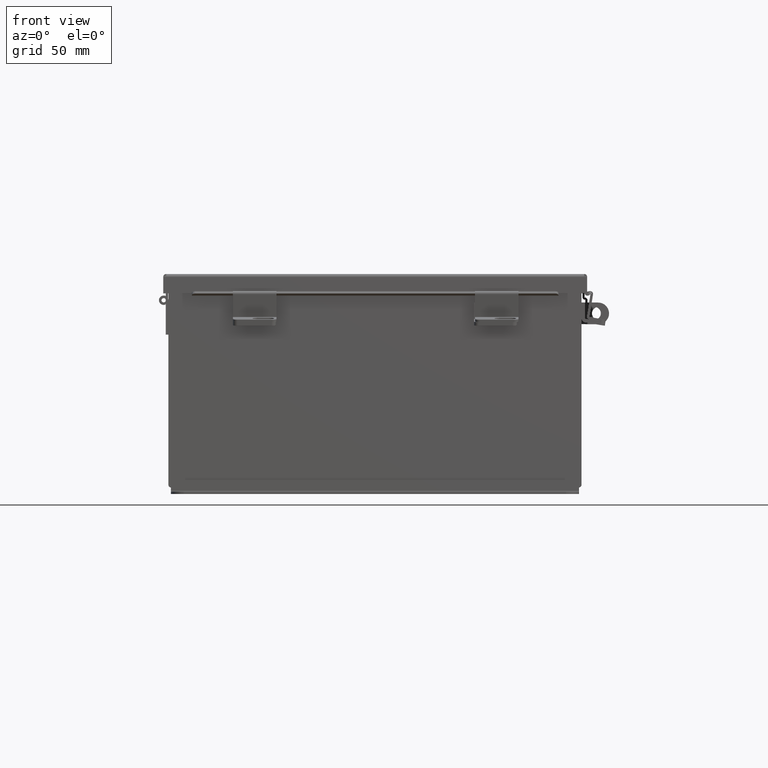
[diagram: clean part render]
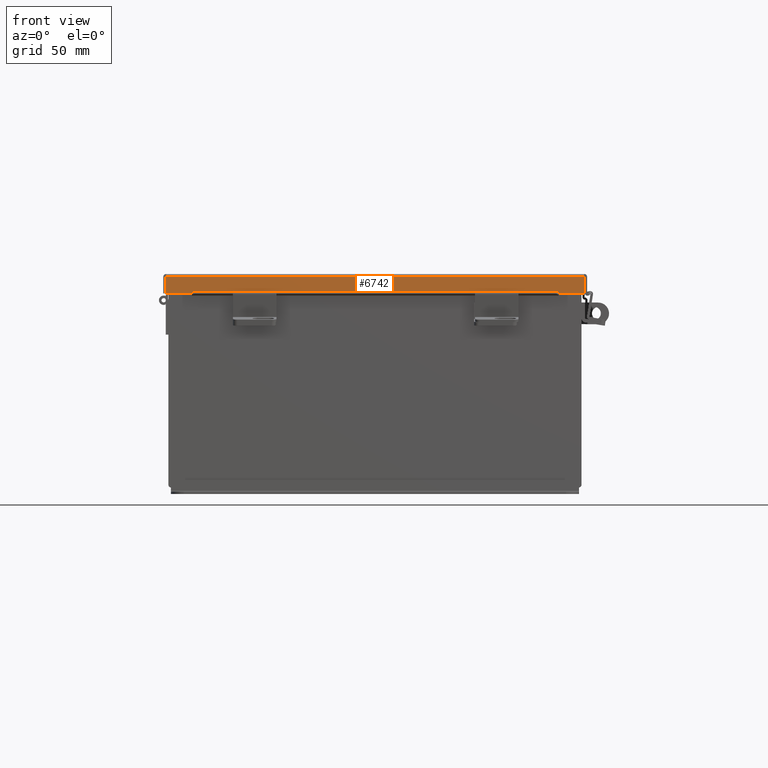
[diagram: same view with one face highlighted and labeled with its STEP entity id]
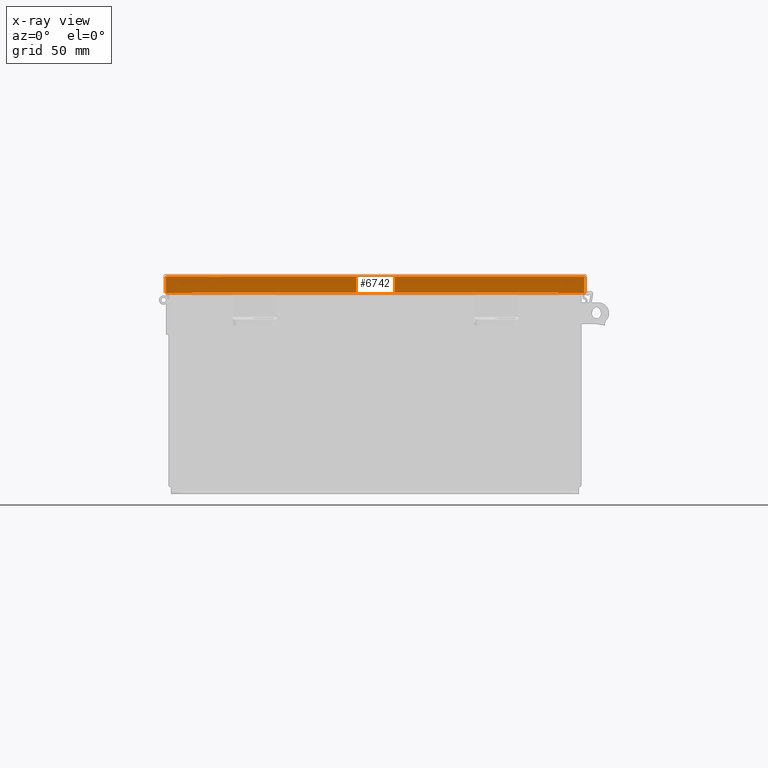
[diagram: x-ray of the same camera — body ghosted, the highlighted face saturated]
A machine part, front view. The second image highlights one B-rep face of the part: STEP entity #6742.
The next image is the same camera in x-ray: the body ghosted, the highlighted face saturated — about 0% of this face is hidden behind the body in this view.
In plain terms, the highlighted planar face has unit normal (0, 1, -0).
Its self-contained STEP definition (entity closure, byte-faithful):
#328 = VECTOR ( 'NONE', #6348, 39.37007874015748100 ) ;
#347 = CARTESIAN_POINT ( 'NONE',  ( -5.324478932188134700, -7.156250000000004400, 0.4717115427318793700 ) ) ;
#688 = CARTESIAN_POINT ( 'NONE',  ( -6.074478932188134700, -7.156250000000003600, 0.4872999999999997900 ) ) ;
#787 = LINE ( 'NONE', #16589, #328 ) ;
#1519 = EDGE_CURVE ( 'NONE', #11068, #14471, #14347, .T. ) ;
#1772 = VECTOR ( 'NONE', #5935, 39.37007874015748100 ) ;
#2211 = DIRECTION ( 'NONE',  ( 7.009925220120962200E-014, 0.0000000000000000000, -1.000000000000000000 ) ) ;
#2243 = CARTESIAN_POINT ( 'NONE',  ( -6.074478932188134700, -7.156250000000001800, -3.350199796867980800E-016 ) ) ;
#2507 = AXIS2_PLACEMENT_3D ( 'NONE', #3594, #5637, #14167 ) ;
#2924 = CARTESIAN_POINT ( 'NONE',  ( 5.324478932188136500, -7.156250000000003600, 0.4717115427318793700 ) ) ;
#3015 = CARTESIAN_POINT ( 'NONE',  ( -5.324478932188134700, -7.156250000000003600, 0.4872999999999997900 ) ) ;
#3126 = VECTOR ( 'NONE', #9579, 39.37007874015748100 ) ;
#3290 = VERTEX_POINT ( 'NONE', #4465 ) ;
#3581 = LINE ( 'NONE', #16943, #3126 ) ;
#3594 = CARTESIAN_POINT ( 'NONE',  ( -1.780270132900160700E-031, -7.156250000000001800, -3.235568286128124700E-014 ) ) ;
#3862 = ORIENTED_EDGE ( 'NONE', *, *, #6421, .F. ) ;
#3910 = VERTEX_POINT ( 'NONE', #688 ) ;
#4453 = CARTESIAN_POINT ( 'NONE',  ( 5.324478932188136500, -7.156250000000004400, 0.4717115427318793700 ) ) ;
#4465 = CARTESIAN_POINT ( 'NONE',  ( 6.074478932188137400, -7.156250000000003600, 0.4872999999999997300 ) ) ;
#5228 = DIRECTION ( 'NONE',  ( -1.000000000000000000, 2.487713722829918300E-032, 1.089533968265403200E-046 ) ) ;
#5267 = VECTOR ( 'NONE', #16462, 39.37007874015748100 ) ;
#5310 = PLANE ( 'NONE',  #2507 ) ;
#5388 = EDGE_LOOP ( 'NONE', ( #6076, #14343, #5838, #14085, #9249, #14106, #8147, #3862 ) ) ;
#5637 = DIRECTION ( 'NONE',  ( 2.487713722829918300E-032, 1.000000000000000000, 4.484872552701437000E-015 ) ) ;
#5838 = ORIENTED_EDGE ( 'NONE', *, *, #7985, .F. ) ;
#5935 = DIRECTION ( 'NONE',  ( 0.0000000000000000000, 7.009925220120839700E-014, 1.000000000000000000 ) ) ;
#6062 = VECTOR ( 'NONE', #8704, 39.37007874015748100 ) ;
#6076 = ORIENTED_EDGE ( 'NONE', *, *, #1519, .F. ) ;
#6348 = DIRECTION ( 'NONE',  ( -1.000000000000000000, 0.0000000000000000000, 5.546899479521349200E-018 ) ) ;
#6421 = EDGE_CURVE ( 'NONE', #14471, #10368, #17443, .T. ) ;
#6670 = DIRECTION ( 'NONE',  ( -0.0000000000000000000, -4.484872552701437000E-015, 1.000000000000000000 ) ) ;
#6742 = ADVANCED_FACE ( 'NONE', ( #11903 ), #5310, .F. ) ;
#6788 = CARTESIAN_POINT ( 'NONE',  ( 5.324478932188136500, -7.156250000000003600, 0.4872999999999997900 ) ) ;
#7569 = VECTOR ( 'NONE', #6670, 39.37007874015748100 ) ;
#7985 = EDGE_CURVE ( 'NONE', #15690, #3910, #15369, .T. ) ;
#8062 = CARTESIAN_POINT ( 'NONE',  ( 6.074478932188137400, -7.156250000000001800, 0.01299999999999978100 ) ) ;
#8147 = ORIENTED_EDGE ( 'NONE', *, *, #10417, .F. ) ;
#8704 = DIRECTION ( 'NONE',  ( 0.0000000000000000000, -4.484872552701437000E-015, 1.000000000000000000 ) ) ;
#8730 = CARTESIAN_POINT ( 'NONE',  ( -5.324478932188133000, -7.156250000000004400, 0.4717115427318793700 ) ) ;
#8797 = VERTEX_POINT ( 'NONE', #6788 ) ;
#9249 = ORIENTED_EDGE ( 'NONE', *, *, #13182, .T. ) ;
#9495 = VERTEX_POINT ( 'NONE', #8062 ) ;
#9579 = DIRECTION ( 'NONE',  ( -1.000000000000000000, 0.0000000000000000000, 5.546899479521349200E-018 ) ) ;
#10223 = EDGE_CURVE ( 'NONE', #9495, #15690, #16252, .T. ) ;
#10368 = VERTEX_POINT ( 'NONE', #2924 ) ;
#10417 = EDGE_CURVE ( 'NONE', #10368, #8797, #16457, .T. ) ;
#10434 = VECTOR ( 'NONE', #2211, 39.37007874015748100 ) ;
#11044 = CARTESIAN_POINT ( 'NONE',  ( -5.324478932188134700, -7.156250000000004400, 0.4872999999999991200 ) ) ;
#11068 = VERTEX_POINT ( 'NONE', #3015 ) ;
#11336 = EDGE_CURVE ( 'NONE', #11068, #3910, #3581, .T. ) ;
#11903 = FACE_OUTER_BOUND ( 'NONE', #5388, .T. ) ;
#12299 = EDGE_CURVE ( 'NONE', #3290, #8797, #787, .T. ) ;
#12336 = VECTOR ( 'NONE', #5228, 39.37007874015748100 ) ;
#13167 = CARTESIAN_POINT ( 'NONE',  ( 6.074478932188135600, -7.156250000000001800, -3.235568286128124700E-014 ) ) ;
#13182 = EDGE_CURVE ( 'NONE', #9495, #3290, #13856, .T. ) ;
#13856 = LINE ( 'NONE', #13167, #6062 ) ;
#14000 = CARTESIAN_POINT ( 'NONE',  ( -6.156249999999998200, -7.156250000000001800, 0.01299999999999978100 ) ) ;
#14085 = ORIENTED_EDGE ( 'NONE', *, *, #10223, .F. ) ;
#14106 = ORIENTED_EDGE ( 'NONE', *, *, #12299, .T. ) ;
#14167 = DIRECTION ( 'NONE',  ( 0.0000000000000000000, -4.484872552701437000E-015, 1.000000000000000000 ) ) ;
#14343 = ORIENTED_EDGE ( 'NONE', *, *, #11336, .T. ) ;
#14347 = LINE ( 'NONE', #11044, #10434 ) ;
#14471 = VERTEX_POINT ( 'NONE', #8730 ) ;
#15369 = LINE ( 'NONE', #2243, #7569 ) ;
#15644 = CARTESIAN_POINT ( 'NONE',  ( -6.074478932188134700, -7.156250000000001800, 0.01299999999999977400 ) ) ;
#15690 = VERTEX_POINT ( 'NONE', #15644 ) ;
#16252 = LINE ( 'NONE', #14000, #12336 ) ;
#16457 = LINE ( 'NONE', #4453, #1772 ) ;
#16462 = DIRECTION ( 'NONE',  ( 1.000000000000000000, 0.0000000000000000000, 0.0000000000000000000 ) ) ;
#16589 = CARTESIAN_POINT ( 'NONE',  ( 2.703004116370754100E-018, -7.156250000000003600, 0.4872999999999997900 ) ) ;
#16943 = CARTESIAN_POINT ( 'NONE',  ( 2.703004116370754100E-018, -7.156250000000003600, 0.4872999999999997900 ) ) ;
#17443 = LINE ( 'NONE', #347, #5267 ) ;